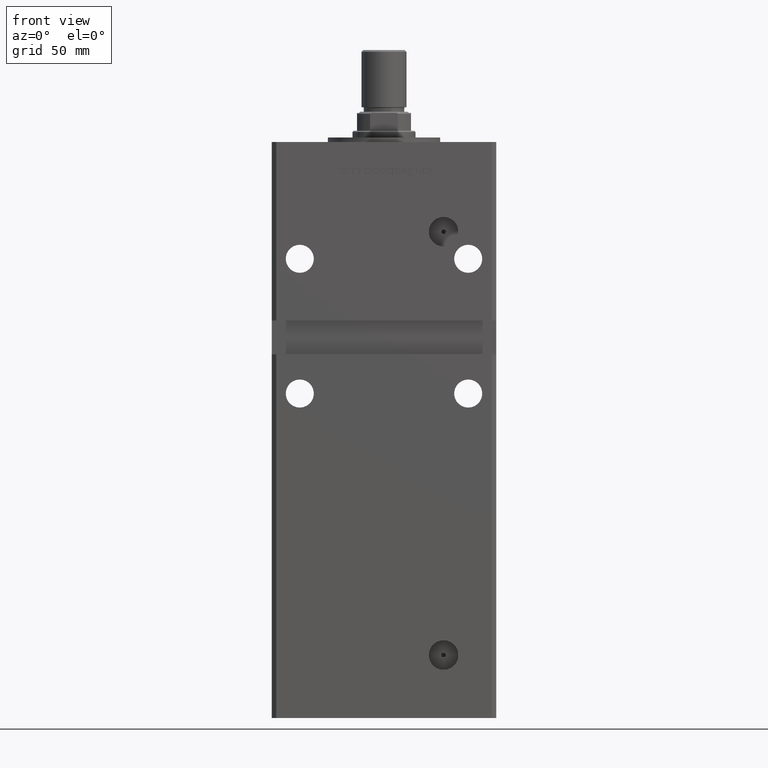
[diagram: clean part render]
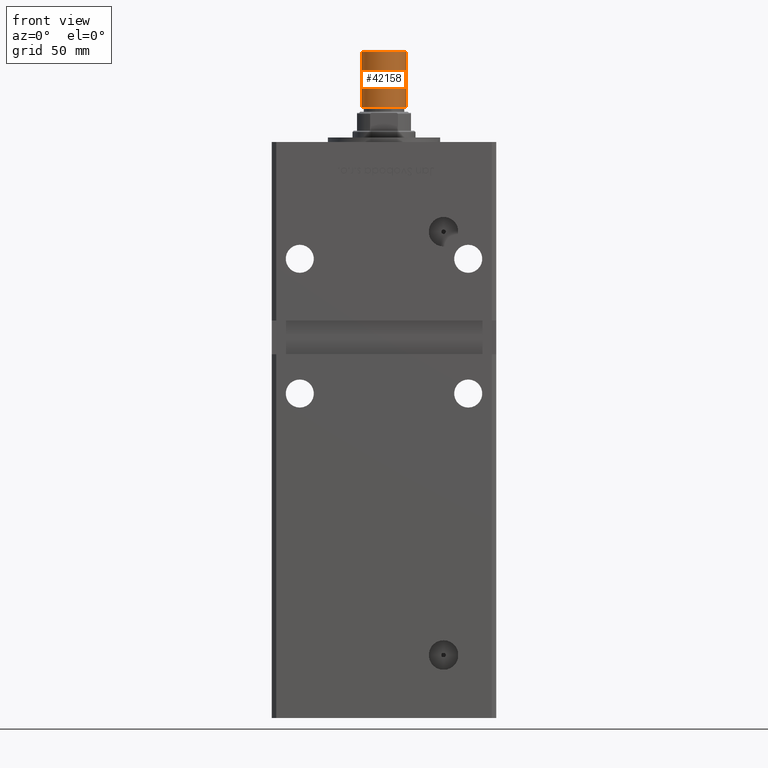
[diagram: same view with one face highlighted and labeled with its STEP entity id]
A machine part, front view. The second image highlights one B-rep face of the part: STEP entity #42158.
In plain terms, the highlighted cylindrical surface (edge-blend (fillet) strip) has radius 10 mm, axis along (0, -0, 1).
Its self-contained STEP definition (entity closure, byte-faithful):
#1237 = CARTESIAN_POINT ( 'NONE',  ( -10.00000000000000000, 0.000000000000000000, 25.50000000000000000 ) ) ;
#1346 = LINE ( 'NONE', #2430, #40899 ) ;
#2430 = CARTESIAN_POINT ( 'NONE',  ( 10.00000000000000000, 1.224646799147353256E-15, 25.50000000000000000 ) ) ;
#3021 = DIRECTION ( 'NONE',  ( -0.000000000000000000, -0.000000000000000000, -1.000000000000000000 ) ) ;
#3695 = AXIS2_PLACEMENT_3D ( 'NONE', #40924, #3021, #3813 ) ;
#3813 = DIRECTION ( 'NONE',  ( -1.000000000000000000, 0.000000000000000000, 0.000000000000000000 ) ) ;
#5555 = CARTESIAN_POINT ( 'NONE',  ( -10.00000000000000000, 0.000000000000000000, 0.7999999999999986011 ) ) ;
#5961 = VECTOR ( 'NONE', #18042, 1000.000000000000000 ) ;
#9759 = DIRECTION ( 'NONE',  ( 0.000000000000000000, 0.000000000000000000, 1.000000000000000000 ) ) ;
#10005 = CARTESIAN_POINT ( 'NONE',  ( 0.000000000000000000, 0.000000000000000000, 0.7999999999999986011 ) ) ;
#11027 = EDGE_LOOP ( 'NONE', ( #44135, #24616, #34260, #38448 ) ) ;
#14133 = EDGE_CURVE ( 'NONE', #27357, #33455, #37709, .T. ) ;
#18042 = DIRECTION ( 'NONE',  ( -0.000000000000000000, -0.000000000000000000, -1.000000000000000000 ) ) ;
#18684 = DIRECTION ( 'NONE',  ( 1.000000000000000000, 0.000000000000000000, 0.000000000000000000 ) ) ;
#19103 = VERTEX_POINT ( 'NONE', #53595 ) ;
#21841 = CIRCLE ( 'NONE', #47804, 10.00000000000000000 ) ;
#22487 = DIRECTION ( 'NONE',  ( 1.000000000000000000, 0.000000000000000000, 0.000000000000000000 ) ) ;
#22830 = EDGE_CURVE ( 'NONE', #27357, #29810, #37821, .T. ) ;
#23027 = AXIS2_PLACEMENT_3D ( 'NONE', #43079, #9759, #22487 ) ;
#24404 = CYLINDRICAL_SURFACE ( 'NONE', #3695, 10.00000000000000000 ) ;
#24616 = ORIENTED_EDGE ( 'NONE', *, *, #14133, .F. ) ;
#26034 = CARTESIAN_POINT ( 'NONE',  ( -10.00000000000000000, 0.000000000000000000, 25.50000000000000000 ) ) ;
#27357 = VERTEX_POINT ( 'NONE', #26034 ) ;
#29810 = VERTEX_POINT ( 'NONE', #5555 ) ;
#29953 = CARTESIAN_POINT ( 'NONE',  ( 10.00000000000000000, 1.224646799147353256E-15, 25.50000000000000000 ) ) ;
#33455 = VERTEX_POINT ( 'NONE', #29953 ) ;
#34260 = ORIENTED_EDGE ( 'NONE', *, *, #22830, .T. ) ;
#36683 = EDGE_CURVE ( 'NONE', #29810, #19103, #21841, .T. ) ;
#37709 = CIRCLE ( 'NONE', #23027, 10.00000000000000000 ) ;
#37821 = LINE ( 'NONE', #1237, #5961 ) ;
#38448 = ORIENTED_EDGE ( 'NONE', *, *, #36683, .T. ) ;
#40131 = FACE_OUTER_BOUND ( 'NONE', #11027, .T. ) ;
#40899 = VECTOR ( 'NONE', #47407, 1000.000000000000000 ) ;
#40924 = CARTESIAN_POINT ( 'NONE',  ( 0.000000000000000000, 0.000000000000000000, 25.50000000000000000 ) ) ;
#42158 = ADVANCED_FACE ( 'NONE', ( #40131 ), #24404, .T. ) ;
#42312 = EDGE_CURVE ( 'NONE', #33455, #19103, #1346, .T. ) ;
#43079 = CARTESIAN_POINT ( 'NONE',  ( 0.000000000000000000, 0.000000000000000000, 25.50000000000000000 ) ) ;
#44135 = ORIENTED_EDGE ( 'NONE', *, *, #42312, .F. ) ;
#47396 = DIRECTION ( 'NONE',  ( -0.000000000000000000, -0.000000000000000000, 1.000000000000000000 ) ) ;
#47407 = DIRECTION ( 'NONE',  ( -0.000000000000000000, -0.000000000000000000, -1.000000000000000000 ) ) ;
#47804 = AXIS2_PLACEMENT_3D ( 'NONE', #10005, #47396, #18684 ) ;
#53595 = CARTESIAN_POINT ( 'NONE',  ( 10.00000000000000000, 1.224646799147353256E-15, 0.7999999999999986011 ) ) ;